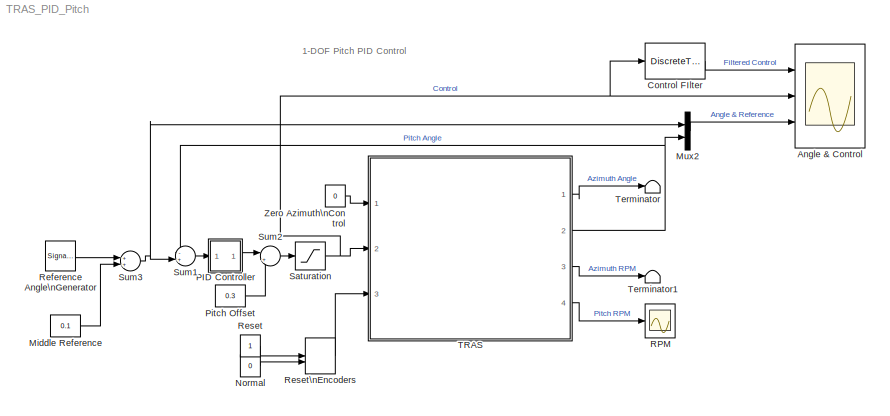
MODEL TRAS_PID_Pitch
KIND model
BLOCK [Scope] Angle & Control
  DataFormat = StructureWithTime
  ExtModeLoggingTrig = on
  ExtModeUploadOption = log
  Floating = off
  MaxDataPoints = 12000
  NumInputPorts = 3
  Ports = [3]
  SID = 1
  SampleTime = 0
  SaveName = AngleCtrl
  SaveToWorkspace = on
  ShowLegends = off
  TimeRange = 90
  YMax = 0.25~0.215~0.4
  YMin = 1.38778e-017~0.2~-0.6
  ZoomMode = xonly
BLOCK [DiscreteTransferFcn] Control FIlter
  Denominator = [1.0000   -3.9845    6.4349   -5.2536    2.1651   -0.3599]
  InputPortMap = u0
  Numerator = [0.0598    0.2990    0.5980    0.5980    0.2990    0.0598] * 1e-3
  Ports = [1, 1]
  SID = 2
  SampleTime = 0.01
BLOCK [Constant] Middle Reference
  SID = 3
  Value = 0.1
BLOCK [Mux] Mux2
  DisplayOption = bar
  Inputs = 2
  Ports = [2, 1]
  SID = 4
BLOCK [Constant] Normal
  SID = 5
  Value = 0
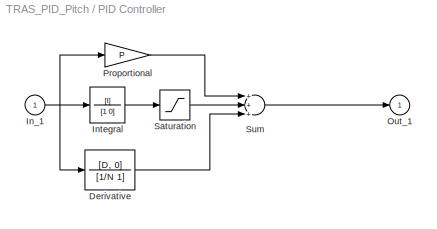
BLOCK [SubSystem] PID Controller
  FunctionWithSeparateData = off
  MaskHideContents = off
  MinAlgLoopOccurrences = off
  Opaque = off
  Ports = [1, 1]
  PropExecContextOutsideSubsystem = off
  RTWSystemCode = Auto
  RequestExecContextInheritance = off
  SID = 6
BLOCK [TransferFcn] PID Controller/Derivative
  Denominator = [1/N 1]
  Numerator = [D, 0]
  SID = 8
BLOCK [Inport] PID Controller/In_1
  IconDisplay = Port number
  SID = 7
BLOCK [TransferFcn] PID Controller/Integral
  Denominator = [1 0]
  Numerator = [I]
  SID = 9
BLOCK [Outport] PID Controller/Out_1
  IconDisplay = Port number
  InitialOutput = 0
  SID = 13
BLOCK [Gain] PID Controller/Proportional
  Gain = P
  SID = 10
BLOCK [Saturate] PID Controller/Saturation
  InputPortMap = u0
  LowerLimit = -S
  Ports = [1, 1]
  SID = 11
  UpperLimit = S
BLOCK [Sum] PID Controller/Sum
  Inputs = +++
  Ports = [3, 1]
  SID = 12
BLOCK [Constant] Pitch Offset
  SID = 14
  Value = 0.3
BLOCK [Scope] RPM
  DataFormat = StructureWithTime
  ExtModeLoggingTrig = on
  ExtModeUploadOption = log
  Floating = off
  MaxDataPoints = 12000
  NumInputPorts = 1
  Ports = [1]
  SID = 15
  SampleTime = 0
  SaveName = RPM
  SaveToWorkspace = on
  ShowLegends = off
  TimeRange = 90
  YMax = 7000
  YMin = -6000
BLOCK [SignalGenerator] Reference Angle\nGenerator
  Amplitude = 0.2
  Frequency = 0.025
  Ports = [0, 1]
  SID = 16
  WaveForm = square
BLOCK [Constant] Reset
  SID = 17
BLOCK [ManualSwitch] Reset\nEncoders
  CurrentSetting = 0
  SID = 18
BLOCK [Saturate] Saturation
  InputPortMap = u0
  LowerLimit = 0.2
  Ports = [1, 1]
  SID = 19
  UpperLimit = 1
BLOCK [Sum] Sum1
  IconShape = round
  Inputs = -+|
  Ports = [2, 1]
  SID = 20
BLOCK [Sum] Sum2
  IconShape = round
  Inputs = |++
  Ports = [2, 1]
  SID = 21
BLOCK [Sum] Sum3
  Ports = [2, 1]
  SID = 22
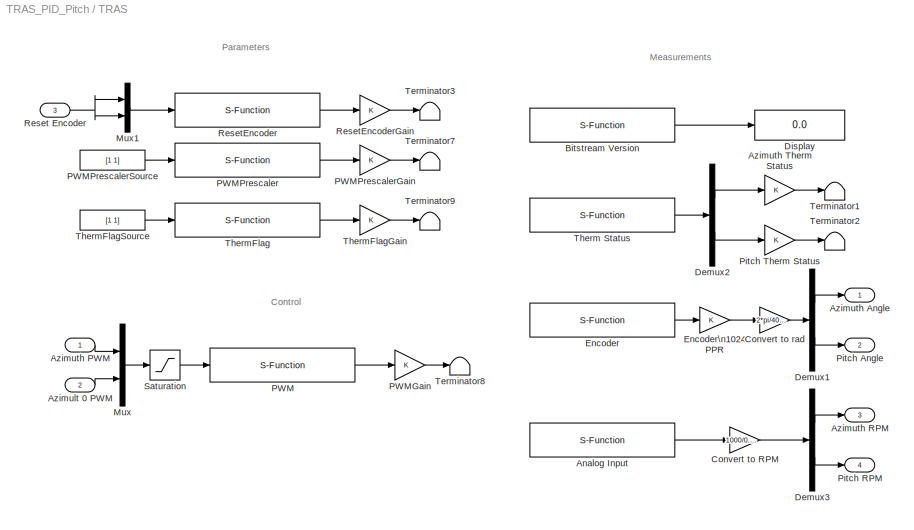
BLOCK [SubSystem] TRAS
  FunctionWithSeparateData = off
  MaskHideContents = off
  MinAlgLoopOccurrences = off
  Opaque = off
  Ports = [3, 4]
  PropExecContextOutsideSubsystem = off
  RTWSystemCode = Auto
  RequestExecContextInheritance = off
  SID = 23
BLOCK [S-Function] TRAS/Analog Input
  EnableBusSupport = off
  FunctionName = TRAS_AnalogInput
  Parameters = BaseAddress, [1 0], [1 1], T0
  Ports = [0, 1]
  SID = 27
BLOCK [Inport] TRAS/Azimult 0 PWM
  IconDisplay = Port number
  Port = 2
  SID = 25
BLOCK [Outport] TRAS/Azimuth Angle
  IconDisplay = Port number
  InitialOutput = 0
  SID = 59
BLOCK [Inport] TRAS/Azimuth PWM
  IconDisplay = Port number
  SID = 24
BLOCK [Outport] TRAS/Azimuth RPM
  IconDisplay = Port number
  InitialOutput = 0
  Port = 3
  SID = 61
BLOCK [Gain] TRAS/Azimuth Therm Status
  SID = 28
BLOCK [S-Function] TRAS/Bitstream Version
  EnableBusSupport = off
  FunctionName = TRAS_BitstreamVersion
  Parameters = BaseAddress, T0
  Ports = [0, 1]
  SID = 29
BLOCK [Gain] TRAS/Convert to RPM
  Gain = 1000/0.52/2
  SID = 30
BLOCK [Gain] TRAS/Convert to rad
  Gain = 2*pi/4096
  SID = 31
BLOCK [Demux] TRAS/Demux1
  Outputs = 2
  Ports = [1, 2]
  SID = 32
BLOCK [Demux] TRAS/Demux2
  Outputs = 2
  Ports = [1, 2]
  SID = 33
BLOCK [Demux] TRAS/Demux3
  Outputs = 2
  Ports = [1, 2]
  SID = 34
BLOCK [Display] TRAS/Display
  Decimation = 1
  Lockdown = off
  Ports = [1]
  SID = 35
BLOCK [S-Function] TRAS/Encoder
  EnableBusSupport = off
  FunctionName = TRAS_Encoder
  Parameters = BaseAddress, T0
  Ports = [0, 1]
  SID = 36
BLOCK [Gain] TRAS/Encoder\n1024 PPR
  SID = 37
BLOCK [Mux] TRAS/Mux
  Inputs = 2
  Ports = [2, 1]
  SID = 38
BLOCK [Mux] TRAS/Mux1
  Inputs = 2
  Ports = [2, 1]
  SID = 39
BLOCK [S-Function] TRAS/PWM
  EnableBusSupport = off
  FunctionName = TRAS_PWM
  Parameters = BaseAddress, T0
  Ports = [1, 1]
  SID = 40
BLOCK [Gain] TRAS/PWMGain
  SID = 41
BLOCK [S-Function] TRAS/PWMPrescaler
  EnableBusSupport = off
  FunctionName = TRAS_PWMPrescaler
  Parameters = BaseAddress, T0
  Ports = [1, 1]
  SID = 42
BLOCK [Gain] TRAS/PWMPrescalerGain
  SID = 43
BLOCK [Constant] TRAS/PWMPrescalerSource
  SID = 44
  Value = [1 1]
BLOCK [Outport] TRAS/Pitch Angle
  IconDisplay = Port number
  InitialOutput = 0
  Port = 2
  SID = 60
BLOCK [Outport] TRAS/Pitch RPM
  IconDisplay = Port number
  InitialOutput = 0
  Port = 4
  SID = 62
BLOCK [Gain] TRAS/Pitch Therm Status
  SID = 45
BLOCK [Inport] TRAS/Reset Encoder
  IconDisplay = Port number
  Port = 3
  SID = 26
BLOCK [S-Function] TRAS/ResetEncoder
  EnableBusSupport = off
  FunctionName = TRAS_ResetEncoder
  Parameters = BaseAddress, T0
  Ports = [1, 1]
  SID = 46
BLOCK [Gain] TRAS/ResetEncoderGain
  SID = 47
BLOCK [Saturate] TRAS/Saturation
  InputPortMap = u0
  LowerLimit = -1
  Ports = [1, 1]
  SID = 48
  UpperLimit = 1
BLOCK [Terminator] TRAS/Terminator1
  SID = 49
BLOCK [Terminator] TRAS/Terminator2
  SID = 50
BLOCK [Terminator] TRAS/Terminator3
  SID = 51
BLOCK [Terminator] TRAS/Terminator7
  SID = 52
BLOCK [Terminator] TRAS/Terminator8
  SID = 53
BLOCK [Terminator] TRAS/Terminator9
  SID = 54
BLOCK [S-Function] TRAS/Therm Status
  EnableBusSupport = off
  FunctionName = TRAS_PWMTherm
  Parameters = BaseAddress, T0
  Ports = [0, 1]
  SID = 55
BLOCK [S-Function] TRAS/ThermFlag 
  EnableBusSupport = off
  FunctionName = TRAS_ThermFlag
  Parameters = BaseAddress, T0
  Ports = [1, 1]
  SID = 56
BLOCK [Gain] TRAS/ThermFlagGain
  SID = 57
BLOCK [Constant] TRAS/ThermFlagSource
  SID = 58
  Value = [1 1]
BLOCK [Terminator] Terminator
  SID = 63
BLOCK [Terminator] Terminator1
  SID = 64
BLOCK [Constant] Zero Azimuth\nControl
  SID = 65
  Value = 0
ANNOTATION (root): 1-DOF Pitch PID Control
ANNOTATION TRAS: Control
ANNOTATION TRAS: Measurements
ANNOTATION TRAS: Parameters
LINE Control FIlter:1 -> Angle & Control:1
LINE Middle Reference:1 -> Sum3:2
LINE Mux2:1 -> Angle & Control:3
LINE Normal:1 -> Reset\nEncoders:2
LINE PID Controller/Derivative:1 -> PID Controller/Sum:3
NET PID Controller/In_1:1 -> PID Controller/Derivative:1, PID Controller/Integral:1, PID Controller/Proportional:1
LINE PID Controller/Integral:1 -> PID Controller/Saturation:1
LINE PID Controller/Proportional:1 -> PID Controller/Sum:1
LINE PID Controller/Saturation:1 -> PID Controller/Sum:2
LINE PID Controller/Sum:1 -> PID Controller/Out_1:1
LINE PID Controller:1 -> Sum2:1
LINE Pitch Offset:1 -> Sum2:2
LINE Reference Angle\nGenerator:1 -> Sum3:1
LINE Reset:1 -> Reset\nEncoders:1
LINE Reset\nEncoders:1 -> TRAS:3
NET Saturation:1 -> Angle & Control:2, Control FIlter:1, TRAS:2
LINE Sum1:1 -> PID Controller:1
LINE Sum2:1 -> Saturation:1
NET Sum3:1 -> Mux2:1, Sum1:2
LINE TRAS/Analog Input:1 -> TRAS/Convert to RPM:1
LINE TRAS/Azimult 0 PWM:1 -> TRAS/Mux:2
LINE TRAS/Azimuth PWM:1 -> TRAS/Mux:1
LINE TRAS/Azimuth Therm Status:1 -> TRAS/Terminator1:1
LINE TRAS/Bitstream Version:1 -> TRAS/Display:1
LINE TRAS/Convert to RPM:1 -> TRAS/Demux3:1
LINE TRAS/Convert to rad:1 -> TRAS/Demux1:1
LINE TRAS/Demux1:1 -> TRAS/Azimuth Angle:1
LINE TRAS/Demux1:2 -> TRAS/Pitch Angle:1
LINE TRAS/Demux2:1 -> TRAS/Azimuth Therm Status:1
LINE TRAS/Demux2:2 -> TRAS/Pitch Therm Status:1
LINE TRAS/Demux3:1 -> TRAS/Azimuth RPM:1
LINE TRAS/Demux3:2 -> TRAS/Pitch RPM:1
LINE TRAS/Encoder:1 -> TRAS/Encoder\n1024 PPR:1
LINE TRAS/Encoder\n1024 PPR:1 -> TRAS/Convert to rad:1
LINE TRAS/Mux1:1 -> TRAS/ResetEncoder:1
LINE TRAS/Mux:1 -> TRAS/Saturation:1
LINE TRAS/PWM:1 -> TRAS/PWMGain:1
LINE TRAS/PWMGain:1 -> TRAS/Terminator8:1
LINE TRAS/PWMPrescaler:1 -> TRAS/PWMPrescalerGain:1
LINE TRAS/PWMPrescalerGain:1 -> TRAS/Terminator7:1
LINE TRAS/PWMPrescalerSource:1 -> TRAS/PWMPrescaler:1
LINE TRAS/Pitch Therm Status:1 -> TRAS/Terminator2:1
NET TRAS/Reset Encoder:1 -> TRAS/Mux1:1, TRAS/Mux1:2
LINE TRAS/ResetEncoder:1 -> TRAS/ResetEncoderGain:1
LINE TRAS/ResetEncoderGain:1 -> TRAS/Terminator3:1
LINE TRAS/Saturation:1 -> TRAS/PWM:1
LINE TRAS/Therm Status:1 -> TRAS/Demux2:1
LINE TRAS/ThermFlag :1 -> TRAS/ThermFlagGain:1
LINE TRAS/ThermFlagGain:1 -> TRAS/Terminator9:1
LINE TRAS/ThermFlagSource:1 -> TRAS/ThermFlag :1
LINE TRAS:1 -> Terminator:1
NET TRAS:2 -> Mux2:2, Sum1:1
LINE TRAS:3 -> Terminator1:1
LINE TRAS:4 -> RPM:1
LINE Zero Azimuth\nControl:1 -> TRAS:1
note: NET lines group one-source signal fan-out (src -> all destinations, sorted); 1:1 wires keep LINE
